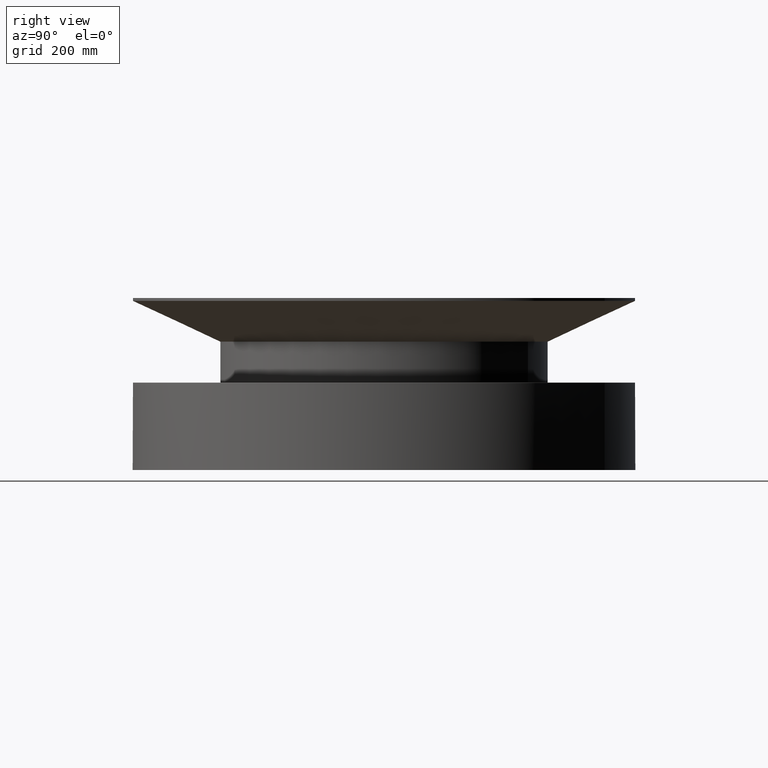
[diagram: clean part render]
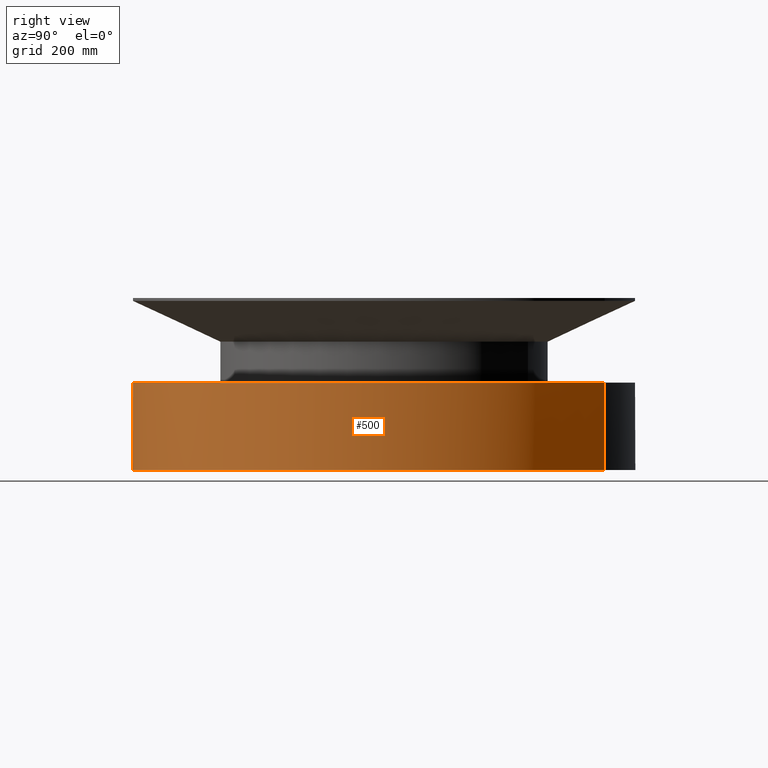
[diagram: same view with one face highlighted and labeled with its STEP entity id]
A machine part, right view. The second image highlights one B-rep face of the part: STEP entity #500.
In plain terms, the highlighted cylindrical surface (partial cylindrical patch) has radius 584.2 mm, axis along (0, 0, -1).
Its self-contained STEP definition (entity closure, byte-faithful):
#82=AXIS2_PLACEMENT_3D('Circle Axis2P3D',#80,#81,$) ;
#429=AXIS2_PLACEMENT_3D('Cylinder Axis2P3D',#426,#427,#428) ;
#475=AXIS2_PLACEMENT_3D('Circle Axis2P3D',#473,#474,$) ;
#482=AXIS2_PLACEMENT_3D('Circle Axis2P3D',#480,#481,$) ;
#489=AXIS2_PLACEMENT_3D('Circle Axis2P3D',#487,#488,$) ;
#80=CARTESIAN_POINT('Axis2P3D Location',(0.,0.,8.00000000003)) ;
#84=CARTESIAN_POINT('Vertex',(11.0267873879,20.1843989236,8.00000000003)) ;
#86=CARTESIAN_POINT('Vertex',(-11.0267873879,-20.1843989236,8.00000000003)) ;
#426=CARTESIAN_POINT('Axis2P3D Location',(0.,0.,7.75000000003)) ;
#437=CARTESIAN_POINT('Vertex',(11.0267873879,20.1843989236,3.35689481461E-015)) ;
#451=CARTESIAN_POINT('Vertex',(-11.0267873879,-20.1843989236,3.35689481461E-015)) ;
#454=CARTESIAN_POINT('Line Origine',(-11.0267873879,-20.1843989236,15.6152306327)) ;
#459=CARTESIAN_POINT('Line Origine',(11.0267873879,20.1843989236,15.6152306327)) ;
#473=CARTESIAN_POINT('Axis2P3D Location',(0.,0.,3.35689481461E-015)) ;
#477=CARTESIAN_POINT('Vertex',(-1.39127339209E-014,-23.0000000001,0.)) ;
#480=CARTESIAN_POINT('Axis2P3D Location',(0.,0.,3.35689481461E-015)) ;
#484=CARTESIAN_POINT('Vertex',(23.0000000001,6.71378962923E-015,0.)) ;
#487=CARTESIAN_POINT('Axis2P3D Location',(0.,0.,3.35689481461E-015)) ;
#81=DIRECTION('Axis2P3D Direction',(0.,0.,-0.0393700787402)) ;
#427=DIRECTION('Axis2P3D Direction',(0.,0.,-0.0393700787402)) ;
#428=DIRECTION('Axis2P3D XDirection',(-0.0188750212049,-0.0345504945626,0.)) ;
#455=DIRECTION('Vector Direction',(0.,0.,-0.0393700787402)) ;
#460=DIRECTION('Vector Direction',(0.,0.,-0.0393700787402)) ;
#474=DIRECTION('Axis2P3D Direction',(0.,0.,-0.0393700787402)) ;
#481=DIRECTION('Axis2P3D Direction',(0.,0.,-0.0393700787402)) ;
#488=DIRECTION('Axis2P3D Direction',(0.,0.,-0.0393700787402)) ;
#456=VECTOR('Line Direction',#455,0.0393700787402) ;
#461=VECTOR('Line Direction',#460,0.0393700787402) ;
#493=ORIENTED_EDGE('',*,*,#479,.F.) ;
#494=ORIENTED_EDGE('',*,*,#486,.F.) ;
#495=ORIENTED_EDGE('',*,*,#491,.F.) ;
#496=ORIENTED_EDGE('',*,*,#463,.T.) ;
#497=ORIENTED_EDGE('',*,*,#88,.T.) ;
#498=ORIENTED_EDGE('',*,*,#458,.F.) ;
#500=ADVANCED_FACE('PartBody',(#499),#430,.T.) ;
#83=CIRCLE('generated circle',#82,23.0000000001) ;
#476=CIRCLE('generated circle',#475,23.0000000001) ;
#483=CIRCLE('generated circle',#482,23.0000000001) ;
#490=CIRCLE('generated circle',#489,23.0000000001) ;
#430=CYLINDRICAL_SURFACE('generated cylinder',#429,23.0000000001) ;
#88=EDGE_CURVE('',#85,#87,#83,.T.) ;
#458=EDGE_CURVE('',#452,#87,#457,.F.) ;
#463=EDGE_CURVE('',#438,#85,#462,.F.) ;
#479=EDGE_CURVE('',#478,#452,#476,.T.) ;
#486=EDGE_CURVE('',#485,#478,#483,.T.) ;
#491=EDGE_CURVE('',#438,#485,#490,.T.) ;
#492=EDGE_LOOP('',(#493,#494,#495,#496,#497,#498)) ;
#499=FACE_OUTER_BOUND('',#492,.T.) ;
#457=LINE('Line',#454,#456) ;
#462=LINE('Line',#459,#461) ;
#85=VERTEX_POINT('',#84) ;
#87=VERTEX_POINT('',#86) ;
#438=VERTEX_POINT('',#437) ;
#452=VERTEX_POINT('',#451) ;
#478=VERTEX_POINT('',#477) ;
#485=VERTEX_POINT('',#484) ;